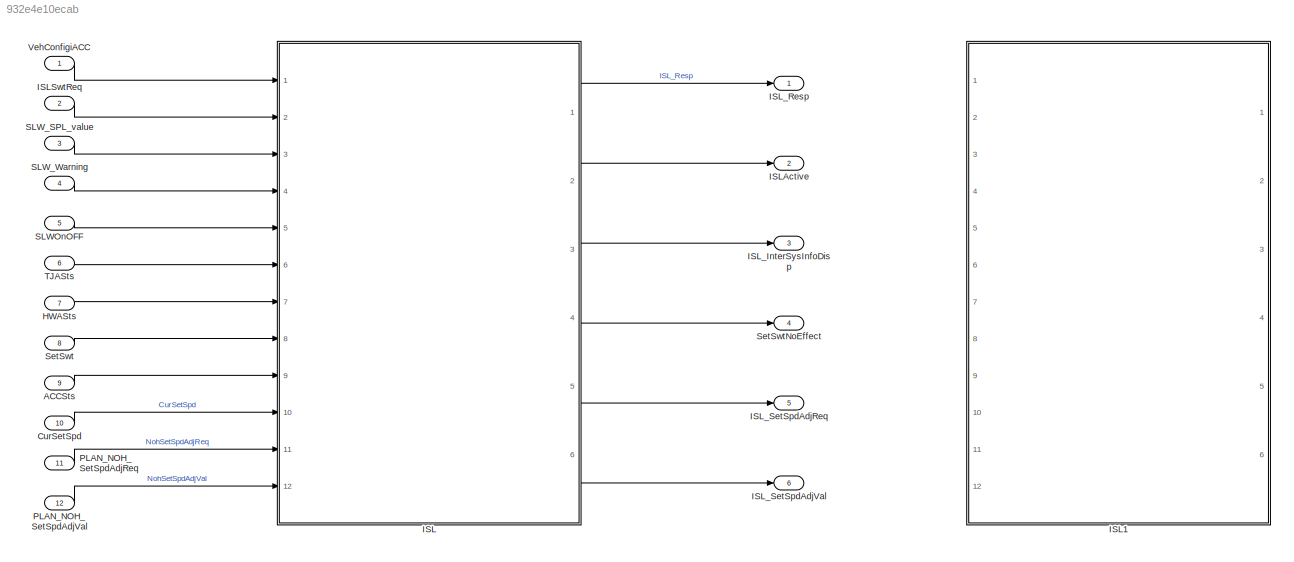
MODEL slx_932e4e10ecab
KIND model
CONFIG AbsTol = auto
CONFIG EnableMultiTasking = off
CONFIG FixedStep = auto
CONFIG InitFcn = , if any(exist('dsmpb_private', 'file') ~= 0), dsmpb_private('dsmpb_mdlclblib', 'Init', bdroot); end,\n
CONFIG MaxStep = auto
CONFIG MinStep = auto
CONFIG PostLoadFcn = if any(exist('dsrtsu_mdlpostloadfcn', 'file') ~= 0), dsrtsu_mdlpostloadfcn('Execute', bdroot); end
CONFIG RelTol = 1e-3
CONFIG SampleTimeConstraint = Unconstrained
CONFIG SolverName = FixedStepAuto
CONFIG StartTime = 0.0
CONFIG StopTime = Inf
BLOCK [Inport] ACCSts
  OutDataTypeStr = Enum: ACC_STATE
  Port = 9
BLOCK [Inport] CurSetSpd
  OutDataTypeStr = single
  Port = 10
BLOCK [Inport] HWASts
  OutDataTypeStr = Enum: HWA_STATE
  Port = 7
BLOCK [SubSystem] ISL
  Ports = [12, 6]
  ReferencedSubsystem = SubSystem_VSM_ISL
  RequestExecContextInheritance = off
BLOCK [SubSystem] ISL1
  Commented = on
  Ports = [12, 6]
  ReferencedSubsystem = SubSystem_VSM_ISL
  RequestExecContextInheritance = off
BLOCK [Outport] ISLActive
  OutDataTypeStr = boolean
  Port = 2
BLOCK [Inport] ISLSwtReq
  OutDataTypeStr = boolean
  Port = 2
BLOCK [Outport] ISL_InterSysInfoDisp
  OutDataTypeStr = uint8
  Port = 3
BLOCK [Outport] ISL_Resp
  OutDataTypeStr = boolean
BLOCK [Outport] ISL_SetSpdAdjReq
  OutDataTypeStr = boolean
  Port = 5
BLOCK [Outport] ISL_SetSpdAdjVal
  OutDataTypeStr = uint8
  Port = 6
BLOCK [Inport] PLAN_NOH_SetSpdAdjReq
  OutDataTypeStr = boolean
  Port = 11
BLOCK [Inport] PLAN_NOH_SetSpdAdjVal
  OutDataTypeStr = uint8
  Port = 12
BLOCK [Inport] SLWOnOFF
  OutDataTypeStr = boolean
  Port = 5
BLOCK [Inport] SLW_SPL_value
  OutDataTypeStr = uint8
  Port = 3
BLOCK [Inport] SLW_Warning
  OutDataTypeStr = boolean
  Port = 4
BLOCK [Inport] SetSwt
  OutDataTypeStr = boolean
  Port = 8
BLOCK [Outport] SetSwtNoEffect
  OutDataTypeStr = boolean
  Port = 4
BLOCK [Inport] TJASts
  OutDataTypeStr = Enum: TJA_STATE
  Port = 6
BLOCK [Inport] VehConfigiACC
  OutDataTypeStr = uint8
LINE ACCSts:1 -> ISL:9
LINE CurSetSpd:1 -> ISL:10
LINE HWASts:1 -> ISL:7
LINE ISL:1 -> ISL_Resp:1
LINE ISL:2 -> ISLActive:1
LINE ISL:3 -> ISL_InterSysInfoDisp:1
LINE ISL:4 -> SetSwtNoEffect:1
LINE ISL:5 -> ISL_SetSpdAdjReq:1
LINE ISL:6 -> ISL_SetSpdAdjVal:1
LINE ISLSwtReq:1 -> ISL:2
LINE PLAN_NOH_SetSpdAdjReq:1 -> ISL:11
LINE PLAN_NOH_SetSpdAdjVal:1 -> ISL:12
LINE SLWOnOFF:1 -> ISL:5
LINE SLW_SPL_value:1 -> ISL:3
LINE SLW_Warning:1 -> ISL:4
LINE SetSwt:1 -> ISL:8
LINE TJASts:1 -> ISL:6
LINE VehConfigiACC:1 -> ISL:1
